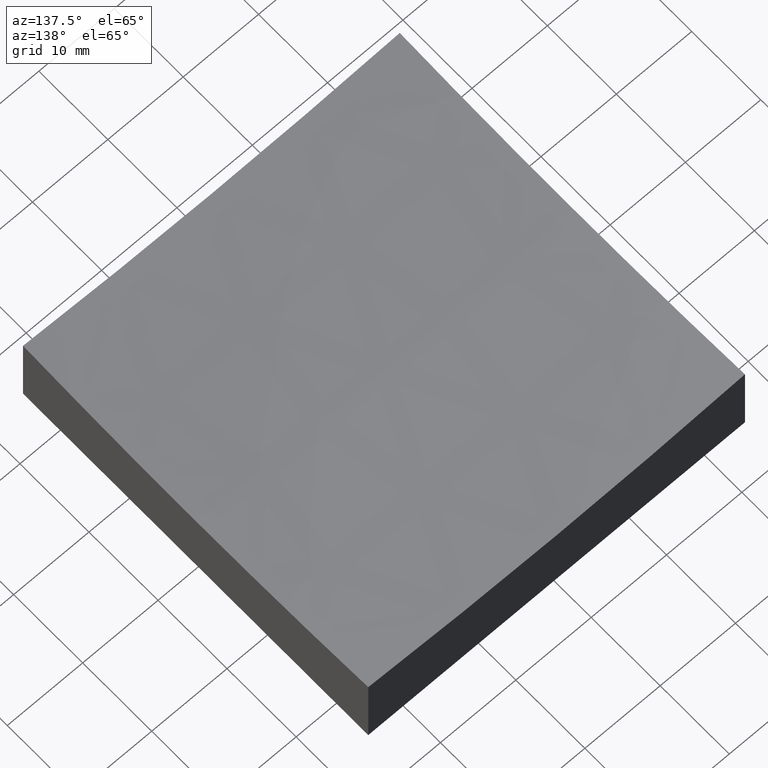
[diagram: clean part render]
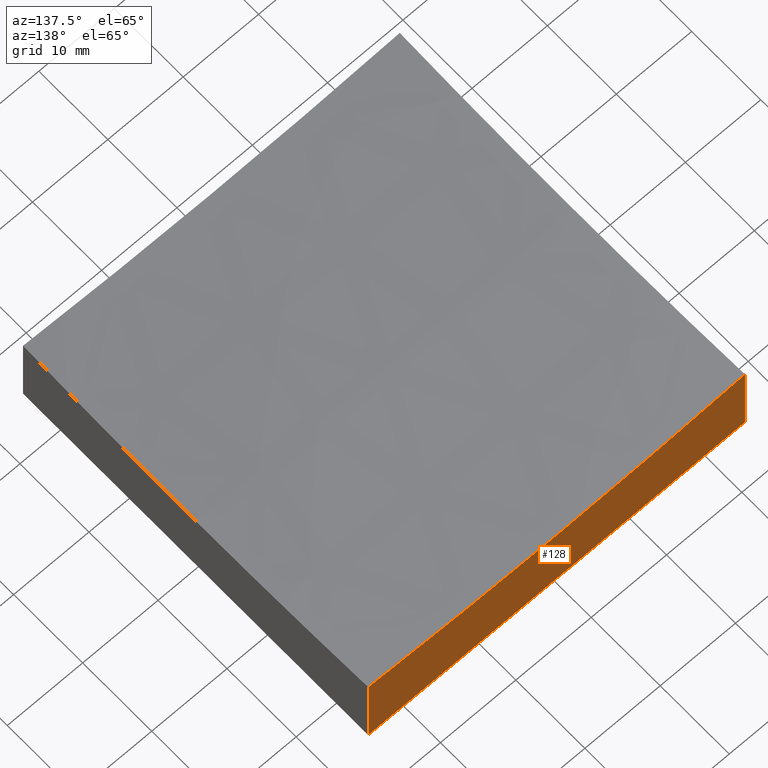
[diagram: same view with one face highlighted and labeled with its STEP entity id]
A machine part, auxiliary view. The second image highlights one B-rep face of the part: STEP entity #128.
In plain terms, the highlighted planar face has unit normal (0, 1, 0).
Its self-contained STEP definition (entity closure, byte-faithful):
#4 = FACE_OUTER_BOUND ( 'NONE', #246, .T. ) ;
#9 = DIRECTION ( 'NONE',  ( 0.0000000000000000000, 1.000000000000000000, 0.0000000000000000000 ) ) ;
#13 = AXIS2_PLACEMENT_3D ( 'NONE', #236, #9, #46 ) ;
#18 = LINE ( 'NONE', #43, #232 ) ;
#19 = CARTESIAN_POINT ( 'NONE',  ( -25.00000000000000711, 24.99999999999999645, 11.09061780467546221 ) ) ;
#20 = EDGE_CURVE ( 'NONE', #110, #96, #18, .T. ) ;
#24 = DIRECTION ( 'NONE',  ( 0.0000000000000000000, 1.000000000000000000, 0.0000000000000000000 ) ) ;
#43 = CARTESIAN_POINT ( 'NONE',  ( -25.00000000000000355, 24.99999999999999645, 0.0000000000000000000 ) ) ;
#46 = DIRECTION ( 'NONE',  ( 0.0000000000000000000, 0.0000000000000000000, 1.000000000000000000 ) ) ;
#63 = CARTESIAN_POINT ( 'NONE',  ( -25.00000000000000355, 24.99999999999999645, 50.00000000000000000 ) ) ;
#73 = EDGE_CURVE ( 'NONE', #189, #212, #239, .T. ) ;
#75 = DIRECTION ( 'NONE',  ( 0.0000000000000000000, -0.0000000000000000000, 1.000000000000000000 ) ) ;
#76 = ORIENTED_EDGE ( 'NONE', *, *, #233, .T. ) ;
#80 = CARTESIAN_POINT ( 'NONE',  ( 24.99999999999999645, 24.99999999999999645, 11.09061780467546221 ) ) ;
#87 = DIRECTION ( 'NONE',  ( -0.0000000000000000000, -0.0000000000000000000, -1.000000000000000000 ) ) ;
#92 = VECTOR ( 'NONE', #87, 1000.000000000000000 ) ;
#96 = VERTEX_POINT ( 'NONE', #114 ) ;
#106 = ORIENTED_EDGE ( 'NONE', *, *, #20, .F. ) ;
#110 = VERTEX_POINT ( 'NONE', #117 ) ;
#114 = CARTESIAN_POINT ( 'NONE',  ( 24.99999999999999645, 24.99999999999999645, 0.0000000000000000000 ) ) ;
#117 = CARTESIAN_POINT ( 'NONE',  ( -25.00000000000000355, 24.99999999999999645, 0.0000000000000000000 ) ) ;
#120 = DIRECTION ( 'NONE',  ( -0.0000000000000000000, -0.0000000000000000000, -1.000000000000000000 ) ) ;
#125 = DIRECTION ( 'NONE',  ( 1.000000000000000000, 0.0000000000000000000, 0.0000000000000000000 ) ) ;
#128 = ADVANCED_FACE ( 'NONE', ( #4 ), #205, .T. ) ;
#144 = LINE ( 'NONE', #247, #92 ) ;
#177 = ORIENTED_EDGE ( 'NONE', *, *, #73, .F. ) ;
#184 = AXIS2_PLACEMENT_3D ( 'NONE', #237, #24, #75 ) ;
#189 = VERTEX_POINT ( 'NONE', #80 ) ;
#202 = ORIENTED_EDGE ( 'NONE', *, *, #215, .F. ) ;
#205 = PLANE ( 'NONE',  #184 ) ;
#212 = VERTEX_POINT ( 'NONE', #19 ) ;
#215 = EDGE_CURVE ( 'NONE', #212, #110, #244, .T. ) ;
#225 = VECTOR ( 'NONE', #120, 1000.000000000000000 ) ;
#232 = VECTOR ( 'NONE', #125, 1000.000000000000000 ) ;
#233 = EDGE_CURVE ( 'NONE', #189, #96, #144, .T. ) ;
#236 = CARTESIAN_POINT ( 'NONE',  ( 3.784158609365321758E-14, 24.99999999999999645, 309.0000000000000000 ) ) ;
#237 = CARTESIAN_POINT ( 'NONE',  ( -25.00000000000000355, 24.99999999999999645, 50.00000000000000000 ) ) ;
#239 = CIRCLE ( 'NONE', #13, 298.9565185775348368 ) ;
#244 = LINE ( 'NONE', #63, #225 ) ;
#246 = EDGE_LOOP ( 'NONE', ( #177, #76, #106, #202 ) ) ;
#247 = CARTESIAN_POINT ( 'NONE',  ( 24.99999999999999645, 24.99999999999999645, 50.00000000000000000 ) ) ;